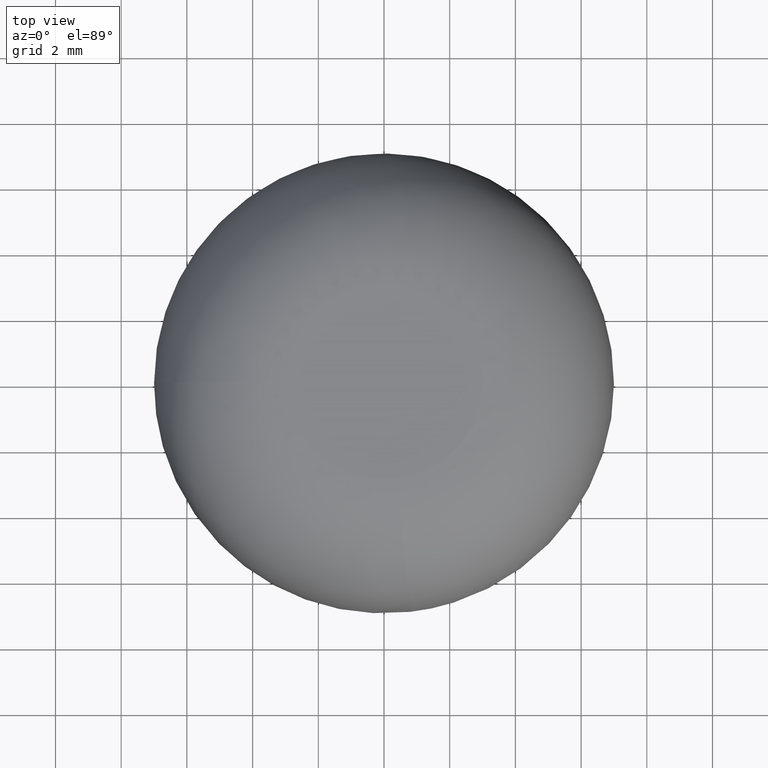
[diagram: clean part render]
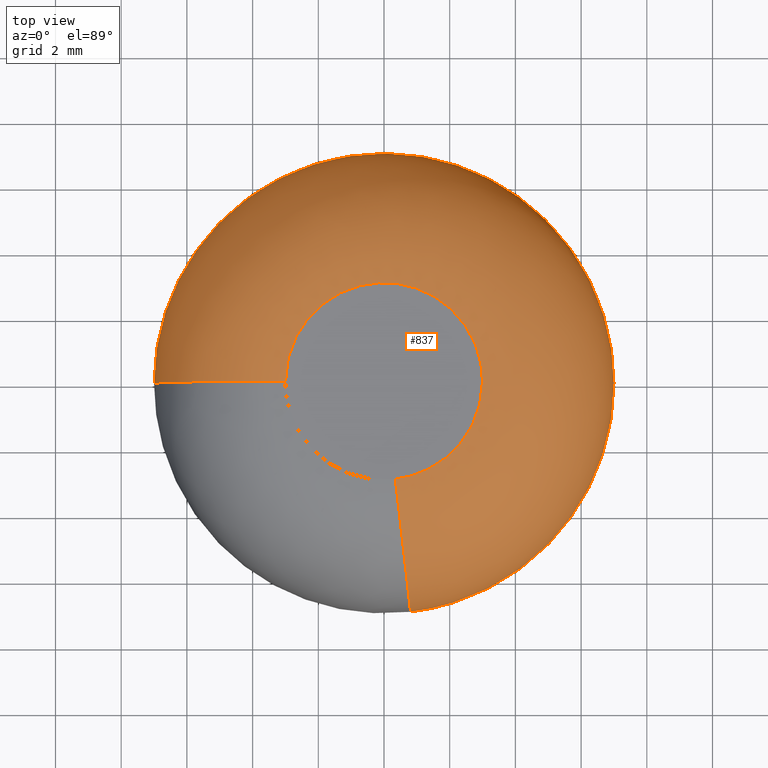
[diagram: same view with one face highlighted and labeled with its STEP entity id]
A machine part, top view. The second image highlights one B-rep face of the part: STEP entity #837.
In plain terms, the highlighted face is a freeform B-spline surface patch.
Its self-contained STEP definition (entity closure, byte-faithful):
#645=CARTESIAN_POINT('',(0.346392114872776,-2.979934009164752,10.199999999999770));
#646=VERTEX_POINT('',#645);
#647=CARTESIAN_POINT('',(-3.000000384556083,0.0,10.199999999999960));
#648=VERTEX_POINT('',#647);
#664=CARTESIAN_POINT('',(-7.0,0.0,6.199999999999989));
#665=VERTEX_POINT('',#664);
#666=CARTESIAN_POINT('',(-6.999999999999998,0.0,6.199999999999975));
#667=CARTESIAN_POINT('',(-7.000000000000018,0.0,8.964321978561877));
#668=CARTESIAN_POINT('',(-4.414213562373095,0.0,9.941657386773940));
#669=CARTESIAN_POINT('',(-3.730703626449663,0.0,10.199999859501812));
#670=CARTESIAN_POINT('',(-3.000000384556083,0.0,10.199999999999964));
#678=(BOUNDED_CURVE()B_SPLINE_CURVE(2,(#666,#667,#668,#669,#670),.UNSPECIFIED.,.F.,.U.)B_SPLINE_CURVE_WITH_KNOTS((3,2,3),(0.499999999999999,0.750000000000000,0.825998069180932),.UNSPECIFIED.)CURVE()GEOMETRIC_REPRESENTATION_ITEM()RATIONAL_B_SPLINE_CURVE((1.000000000000002,0.822664388008035,1.0,0.946091343566368,0.924958317541489))REPRESENTATION_ITEM(''));
#679=EDGE_CURVE('',#665,#648,#678,.T.);
#681=CARTESIAN_POINT('',(0.808249330410697,-6.953181503447942,6.199999997219420));
#682=VERTEX_POINT('',#681);
#698=CARTESIAN_POINT('',(0.808249330410697,-6.953181503447942,6.199999997219420));
#699=CARTESIAN_POINT('',(0.808249605733270,-6.953181475313077,8.964321977109282));
#700=CARTESIAN_POINT('',(0.509683767064527,-4.384689707588152,9.941657386773938));
#701=CARTESIAN_POINT('',(0.430762722174464,-3.705750499391332,10.200000176701661));
#702=CARTESIAN_POINT('',(0.346392114872776,-2.979934009164752,10.199999999999768));
#710=(BOUNDED_CURVE()B_SPLINE_CURVE(2,(#698,#699,#700,#701,#702),.UNSPECIFIED.,.F.,.U.)B_SPLINE_CURVE_WITH_KNOTS((3,2,3),(0.499999999694322,0.750000000000000,0.825998157463053),.UNSPECIFIED.)CURVE()GEOMETRIC_REPRESENTATION_ITEM()RATIONAL_B_SPLINE_CURVE((0.956886118605624,0.787196132607223,0.956886118190660,0.905301613276640,0.885079726979495))REPRESENTATION_ITEM(''));
#711=EDGE_CURVE('',#682,#646,#710,.T.);
#716=CARTESIAN_POINT('',(-6.988787665481205,0.0,5.900712580109015));
#717=CARTESIAN_POINT('',(-7.0,0.0,6.050146263777080));
#718=CARTESIAN_POINT('',(-7.0,0.0,6.200000000000000));
#719=CARTESIAN_POINT('',(-7.000000000000002,0.0,8.964321978561882));
#720=CARTESIAN_POINT('',(-4.414213562373095,0.0,9.941657386773940));
#721=CARTESIAN_POINT('',(-3.573993190311557,0.0,10.259230836911797));
#722=CARTESIAN_POINT('',(-2.678662938101394,0.0,10.187071919673683));
#723=CARTESIAN_POINT('',(-6.988787665481203,6.988787665481203,5.900712580109016));
#724=CARTESIAN_POINT('',(-6.999999999999998,6.999999999999998,6.050146263777080));
#725=CARTESIAN_POINT('',(-6.999999999999999,6.999999999999999,6.200000000000000));
#726=CARTESIAN_POINT('',(-7.0,7.0,8.964321978561884));
#727=CARTESIAN_POINT('',(-4.414213562373095,4.414213562373095,9.941657386773938));
#728=CARTESIAN_POINT('',(-3.573993190311556,3.573993190311556,10.259230836911799));
#729=CARTESIAN_POINT('',(-2.678662938101394,2.678662938101394,10.187071919673681));
#730=CARTESIAN_POINT('',(0.0,6.988787665481205,5.900712580109015));
#731=CARTESIAN_POINT('',(0.0,7.0,6.050146263777080));
#732=CARTESIAN_POINT('',(0.0,7.0,6.200000000000000));
#733=CARTESIAN_POINT('',(0.0,7.000000000000002,8.964321978561882));
#734=CARTESIAN_POINT('',(0.0,4.414213562373095,9.941657386773940));
#735=CARTESIAN_POINT('',(0.0,3.573993190311557,10.259230836911797));
#736=CARTESIAN_POINT('',(0.0,2.678662938101394,10.187071919673683));
#737=CARTESIAN_POINT('',(6.988787665481203,6.988787665481203,5.900712580109016));
#738=CARTESIAN_POINT('',(6.999999999999998,6.999999999999998,6.050146263777080));
#739=CARTESIAN_POINT('',(6.999999999999999,6.999999999999999,6.200000000000000));
#740=CARTESIAN_POINT('',(7.0,7.0,8.964321978561884));
#741=CARTESIAN_POINT('',(4.414213562373095,4.414213562373095,9.941657386773938));
#742=CARTESIAN_POINT('',(3.573993190311556,3.573993190311556,10.259230836911799));
#743=CARTESIAN_POINT('',(2.678662938101394,2.678662938101394,10.187071919673681));
#744=CARTESIAN_POINT('',(6.988787665481205,0.0,5.900712580109015));
#745=CARTESIAN_POINT('',(7.0,0.0,6.050146263777080));
#746=CARTESIAN_POINT('',(7.0,0.0,6.200000000000000));
#747=CARTESIAN_POINT('',(7.000000000000002,0.0,8.964321978561882));
#748=CARTESIAN_POINT('',(4.414213562373095,0.0,9.941657386773940));
#749=CARTESIAN_POINT('',(3.573993190311557,0.0,10.259230836911797));
#750=CARTESIAN_POINT('',(2.678662938101394,0.0,10.187071919673683));
#751=CARTESIAN_POINT('',(6.988787665481204,-6.223457414952721,5.900712580109016));
#752=CARTESIAN_POINT('',(6.999999999999999,-6.233441905788606,6.050146263777080));
#753=CARTESIAN_POINT('',(7.0,-6.233441905788605,6.200000000000000));
#754=CARTESIAN_POINT('',(6.999999999999999,-6.233441905788602,8.964321978561882));
#755=CARTESIAN_POINT('',(4.414213562373095,-3.930820542970979,9.941657386773938));
#756=CARTESIAN_POINT('',(3.573993190311557,-3.182611274784452,10.259230836911797));
#757=CARTESIAN_POINT('',(2.678662938101395,-2.385327115692009,10.187071919673681));
#758=CARTESIAN_POINT('',(0.806954981725348,-6.942044129120102,5.900712580109018));
#759=CARTESIAN_POINT('',(0.808249605289518,-6.953181471495573,6.050146263777082));
#760=CARTESIAN_POINT('',(0.808249605289518,-6.953181471495573,6.200000000000001));
#761=CARTESIAN_POINT('',(0.808249605289518,-6.953181471495577,8.964321978561884));
#762=CARTESIAN_POINT('',(0.509683767064527,-4.384689707588152,9.941657386773940));
#763=CARTESIAN_POINT('',(0.412668369339534,-3.550089032875095,10.259230836911797));
#764=CARTESIAN_POINT('',(0.309289751774873,-2.660747072798358,10.187071919673683));
#772=(BOUNDED_SURFACE()B_SPLINE_SURFACE(2,2,((#716,#723,#730,#737,#744,#751,#758),(#717,#724,#731,#738,#745,#752,#759),(#718,#725,#732,#739,#746,#753,#760),(#719,#726,#733,#740,#747,#754,#761),(#720,#727,#734,#741,#748,#755,#762),(#721,#728,#735,#742,#749,#756,#763),(#722,#729,#736,#743,#750,#757,#764)),.UNSPECIFIED.,.F.,.F.,.U.)B_SPLINE_SURFACE_WITH_KNOTS((3,2,2,3),(3,2,2,3),(0.0,0.325068791231680,5.315804910756384,7.158021290805312),(0.0,11.597979746446660,23.195959492893330,33.866100859624247),.UNSPECIFIED.)GEOMETRIC_REPRESENTATION_ITEM()RATIONAL_B_SPLINE_SURFACE(((0.978403380119462,0.691835664818311,0.978403380119462,0.691835664818311,0.978403380119462,0.714761082042403,0.936220612427133),(0.988449344615309,0.698939234436884,0.988449344615309,0.698939234436884,0.988449344615309,0.722100043251158,0.945833456397045),(1.0,0.707106781186548,1.0,0.707106781186548,1.0,0.730538238691624,0.956886118190660),(0.822664388008036,0.581711567401163,0.822664388008036,0.581711567401163,0.822664388008036,0.600987793049713,0.787196132814704),(1.0,0.707106781186548,1.0,0.707106781186548,1.0,0.730538238691624,0.956886118190660),(0.934540604561415,0.660819998779552,0.934540604561415,0.660819998779552,0.934540604561415,0.682717647242101,0.894248931390325),(0.917406893998570,0.648704635853677,0.917406893998570,0.648704635853677,0.917406893998570,0.670200816505268,0.877853921599641)))REPRESENTATION_ITEM('')SURFACE());
#773=CARTESIAN_POINT('',(3.0,0.0,10.199999999999999));
#774=VERTEX_POINT('',#773);
#775=CARTESIAN_POINT('',(3.0,0.0,10.199999999999999));
#776=CARTESIAN_POINT('',(3.0,-2.671475518924087,10.200000000000001));
#777=CARTESIAN_POINT('',(0.346392114872776,-2.979934009164752,10.199999999999767));
#785=(BOUNDED_CURVE()B_SPLINE_CURVE(2,(#775,#776,#777),.UNSPECIFIED.,.F.,.U.)B_SPLINE_CURVE_WITH_KNOTS((3,3),(0.500000000000000,0.730000026192411),.UNSPECIFIED.)CURVE()GEOMETRIC_REPRESENTATION_ITEM()RATIONAL_B_SPLINE_CURVE((1.0,0.730538208005306,0.956886169743681))REPRESENTATION_ITEM(''));
#786=EDGE_CURVE('',#774,#646,#785,.T.);
#787=ORIENTED_EDGE('',*,*,#786,.T.);
#788=ORIENTED_EDGE('',*,*,#711,.F.);
#789=CARTESIAN_POINT('',(7.0,0.0,6.200000000000000));
#790=VERTEX_POINT('',#789);
#791=CARTESIAN_POINT('',(7.0,0.0,6.200000000000000));
#792=CARTESIAN_POINT('',(6.999999999999999,-6.233442401958143,6.199999999999999));
#793=CARTESIAN_POINT('',(0.808249330410697,-6.953181503447942,6.199999997219420));
#801=(BOUNDED_CURVE()B_SPLINE_CURVE(2,(#791,#792,#793),.UNSPECIFIED.,.F.,.U.)B_SPLINE_CURVE_WITH_KNOTS((3,3),(0.500000000000000,0.730000013374358),.UNSPECIFIED.)CURVE()GEOMETRIC_REPRESENTATION_ITEM()RATIONAL_B_SPLINE_CURVE((1.0,0.730538223022588,0.956886144514641))REPRESENTATION_ITEM(''));
#802=EDGE_CURVE('',#790,#682,#801,.T.);
#803=ORIENTED_EDGE('',*,*,#802,.F.);
#804=CARTESIAN_POINT('',(-7.0,0.0,6.200000000000000));
#805=CARTESIAN_POINT('',(-6.999999999999999,6.999999999999999,6.199999999999999));
#806=CARTESIAN_POINT('',(0.0,7.0,6.200000000000000));
#807=CARTESIAN_POINT('',(6.999999999999999,6.999999999999999,6.199999999999999));
#808=CARTESIAN_POINT('',(7.0,0.0,6.200000000000000));
#816=(BOUNDED_CURVE()B_SPLINE_CURVE(2,(#804,#805,#806,#807,#808),.UNSPECIFIED.,.F.,.U.)B_SPLINE_CURVE_WITH_KNOTS((3,2,3),(0.0,0.250000000000000,0.500000000000000),.UNSPECIFIED.)CURVE()GEOMETRIC_REPRESENTATION_ITEM()RATIONAL_B_SPLINE_CURVE((1.0,0.707106781186547,1.0,0.707106781186547,1.0))REPRESENTATION_ITEM(''));
#817=EDGE_CURVE('',#665,#790,#816,.T.);
#818=ORIENTED_EDGE('',*,*,#817,.F.);
#819=ORIENTED_EDGE('',*,*,#679,.T.);
#820=CARTESIAN_POINT('',(-3.000000384556083,0.0,10.199999999999960));
#821=CARTESIAN_POINT('',(-3.0,3.0,10.200000000000001));
#822=CARTESIAN_POINT('',(0.0,3.0,10.199999999999999));
#823=CARTESIAN_POINT('',(3.0,3.0,10.200000000000001));
#824=CARTESIAN_POINT('',(3.0,0.0,10.199999999999999));
#832=(BOUNDED_CURVE()B_SPLINE_CURVE(2,(#820,#821,#822,#823,#824),.UNSPECIFIED.,.F.,.U.)B_SPLINE_CURVE_WITH_KNOTS((3,2,3),(0.0,0.250000000000000,0.500000000000000),.UNSPECIFIED.)CURVE()GEOMETRIC_REPRESENTATION_ITEM()RATIONAL_B_SPLINE_CURVE((1.0,0.707106781186548,1.0,0.707106781186548,1.0))REPRESENTATION_ITEM(''));
#833=EDGE_CURVE('',#648,#774,#832,.T.);
#834=ORIENTED_EDGE('',*,*,#833,.T.);
#835=EDGE_LOOP('',(#787,#788,#803,#818,#819,#834));
#836=FACE_OUTER_BOUND('',#835,.T.);
#837=ADVANCED_FACE('',(#836),#772,.T.);